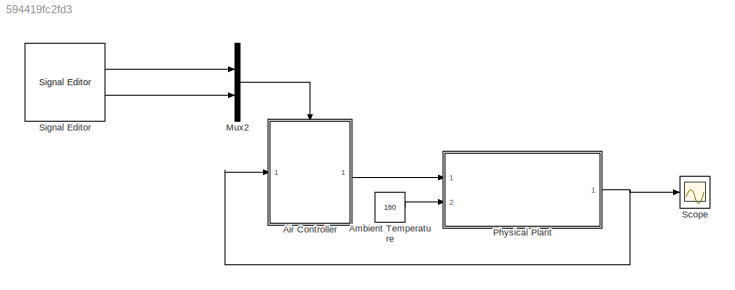
MODEL slx_594419fc2fd3
KIND model
CONFIG AbsTol = auto
CONFIG EnableMultiTasking = on
CONFIG FixedStep = 1000
CONFIG MaxStep = auto
CONFIG MinStep = auto
CONFIG RelTol = 1e-3
CONFIG SampleTimeConstraint = Unconstrained
CONFIG SolverName = ode45
CONFIG StartTime = 0.0
CONFIG StopTime = 600
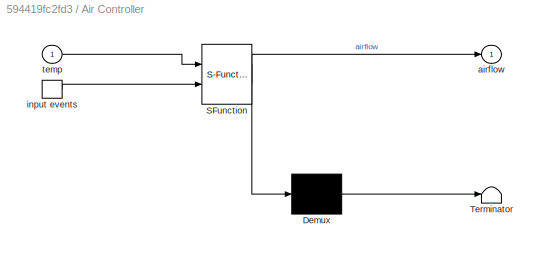
BLOCK [SubSystem] Air Controller
  ErrorFcn = Stateflow.Translate.translate
  PermitHierarchicalResolution = ExplicitOnly
  Ports = [1, 1, 0, 1]
  RequestExecContextInheritance = off
  SFBlockType = Chart
  TreatAsAtomicUnit = on
BLOCK [Demux] Air Controller/ Demux 
  Outputs = 1
  Ports = [1, 1]
BLOCK [S-Function] Air Controller/ SFunction 
  EnableBusSupport = on
  FunctionName = sf_sfun
  PortCounts = [2 2]
  Ports = [2, 2]
  SFcnIsStateOwnerBlock = off
  SFunctionDeploymentMode = off
  Tag = Stateflow S-Function 1
BLOCK [Terminator] Air Controller/ Terminator 
BLOCK [TriggerPort] Air Controller/ input events 
  Ports = [0, 1]
  ShowOutputPort = on
  TriggerType = either
  VariantControl = (inherit)
BLOCK [Outport] Air Controller/airflow
  VectorParamsAs1DForOutWhenUnconnected = off
BLOCK [Inport] Air Controller/temp
BLOCK [Constant] Ambient Temperature
  Value = 160
BLOCK [Mux] Mux2
  DisplayOption = bar
  Inputs = 2
  Ports = [2, 1]
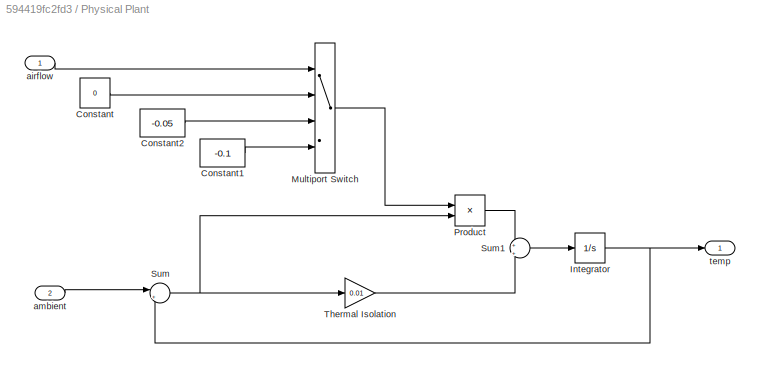
BLOCK [SubSystem] Physical Plant
  Ports = [2, 1]
  RequestExecContextInheritance = off
BLOCK [Constant] Physical Plant/Constant
  Value = 0
BLOCK [Constant] Physical Plant/Constant1
  Value = -0.1
BLOCK [Constant] Physical Plant/Constant2
  Value = -0.05
BLOCK [Integrator] Physical Plant/Integrator
  InitialCondition = 70
  Ports = [1, 1]
BLOCK [MultiPortSwitch] Physical Plant/Multiport Switch
  DataPortOrder = Zero-based contiguous
  InputSameDT = off
  Ports = [4, 1]
  SaturateOnIntegerOverflow = off
  zeroidx = on
BLOCK [Product] Physical Plant/Product
  Ports = [2, 1]
  RndMeth = Zero
BLOCK [Sum] Physical Plant/Sum
  Inputs = |+-
  Ports = [2, 1]
BLOCK [Sum] Physical Plant/Sum1
  Inputs = +|+
  Ports = [2, 1]
BLOCK [Gain] Physical Plant/Thermal Isolation
  Gain = 0.01
BLOCK [Inport] Physical Plant/airflow
BLOCK [Inport] Physical Plant/ambient
  Port = 2
BLOCK [Outport] Physical Plant/temp
  VectorParamsAs1DForOutWhenUnconnected = off
BLOCK [Scope] Scope
  Floating = off
  NumInputPorts = 1
  Ports = [1]
  ScopeSpecificationString = Simulink.scopes.TimeScopeBlockCfg('CurrentConfiguration', extmgr.ConfigurationSet(extmgr.Configuration('Core','General UI',true),extmgr.Configuration('Core','Source UI',true),extmgr.Configuration('Sources','WiredSimulink',true,'DataLoggingSaveFormat','StructureWithTime','DataLoggingDecimation','1'),extmgr.Configuration('Visuals','Time Domain',true,'SerializedDisplays',{struct('MinYLimReal','60','M...<+1736ch>
BLOCK [Reference] Signal Editor  REF=SignalEditorBlockLib/Signal Editor
  Ports = [0, 2]
  SourceBlock = SignalEditorBlockLib/Signal Editor
  SourceProductBaseCode = SL
  SourceType = SignalEditor
  UserDataPersistent = on
LINE Air Controller:1 -> Physical Plant:1
LINE Ambient Temperature:1 -> Physical Plant:2
LINE Mux2:1 -> Air Controller:trigger
LINE Physical Plant/Constant1:1 -> Physical Plant/Multiport Switch:4
LINE Physical Plant/Constant2:1 -> Physical Plant/Multiport Switch:3
LINE Physical Plant/Constant:1 -> Physical Plant/Multiport Switch:2
NET Physical Plant/Integrator:1 -> Physical Plant/Sum:2, Physical Plant/temp:1
LINE Physical Plant/Multiport Switch:1 -> Physical Plant/Product:1
LINE Physical Plant/Product:1 -> Physical Plant/Sum1:1
LINE Physical Plant/Sum1:1 -> Physical Plant/Integrator:1
NET Physical Plant/Sum:1 -> Physical Plant/Product:2, Physical Plant/Thermal Isolation:1
LINE Physical Plant/Thermal Isolation:1 -> Physical Plant/Sum1:2
LINE Physical Plant/airflow:1 -> Physical Plant/Multiport Switch:1
LINE Physical Plant/ambient:1 -> Physical Plant/Sum:1
NET Physical Plant:1 -> Air Controller:1, Scope:1
LINE Signal Editor:1 -> Mux2:1
LINE Signal Editor:2 -> Mux2:2
note: NET lines group one-source signal fan-out (src -> all destinations, sorted); 1:1 wires keep LINE
CHART Air Controller states=9 transitions=9
  STATE_LABEL 'PowerOn'
  STATE_LABEL 'FAN1'
  STATE_LABEL 'On'
  STATE_LABEL 'Off'
  STATE_LABEL '[temp < 120]'
  STATE_LABEL '[temp >=120]'
  STATE_LABEL 'FAN2'
  STATE_LABEL 'On'
  STATE_LABEL 'Off'
  STATE_LABEL '[temp<150]'
  STATE_LABEL '[temp>=150]'
  STATE_LABEL 'SpeedValue\n\ndu: airflow = in(FAN1.On) + in(FAN2.On);'
  STATE_LABEL 'FAN1'
  STATE_LABEL 'On'
  STATE_LABEL 'Off'
  STATE_LABEL '[temp < 120]'
  STATE_LABEL '[temp >=120]'
  STATE_LABEL 'On'
  STATE_LABEL 'Off'
  STATE_LABEL 'FAN2'
  STATE_LABEL 'On'
  STATE_LABEL 'Off'
  STATE_LABEL '[temp<150]'
  STATE_LABEL '[temp>=150]'
  STATE_LABEL 'On'
  STATE_LABEL 'Off'
  STATE_LABEL 'SpeedValue\n\ndu: airflow = in(FAN1.On) + in(FAN2.On);'
  STATE_LABEL 'PowerOff\nen:\nairflow = 0;'
CHART  states=0 transitions=0
